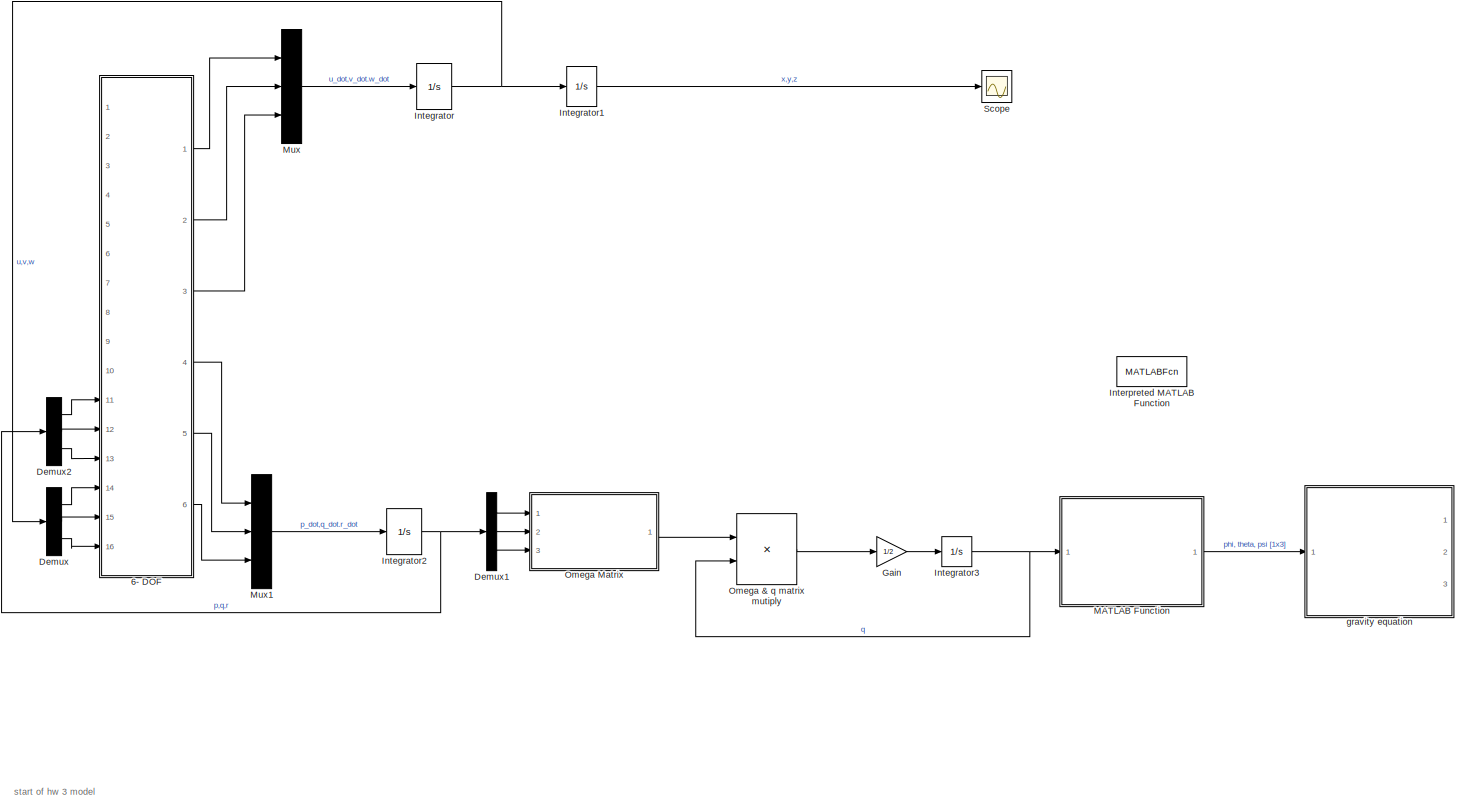
[diagram: root canvas - part 1/1, most of the canvas]
MODEL slx_35ed1de39871
KIND model
CONFIG AbsTol = auto
CONFIG EnableMultiTasking = off
CONFIG FixedStep = auto
CONFIG MaxStep = auto
CONFIG MinStep = auto
CONFIG RelTol = 1e-3
CONFIG SampleTimeConstraint = Unconstrained
CONFIG SolverName = VariableStepAuto
CONFIG StartTime = 0.0
CONFIG StopTime = 10.0
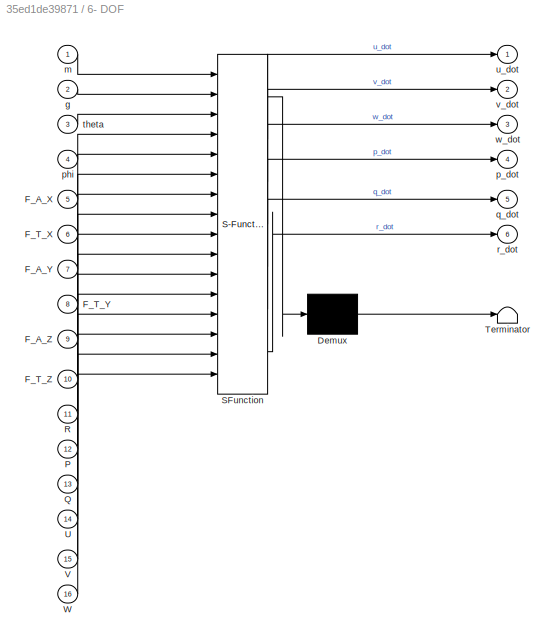
BLOCK [SubSystem] 6- DOF
  ErrorFcn = Stateflow.Translate.translate
  PermitHierarchicalResolution = ExplicitOnly
  Ports = [16, 6]
  RequestExecContextInheritance = off
  SFBlockType = MATLAB Function
  TreatAsAtomicUnit = on
BLOCK [Demux] 6- DOF/ Demux 
  Outputs = 1
  Ports = [1, 1]
BLOCK [S-Function] 6- DOF/ SFunction 
  EnableBusSupport = on
  FunctionName = sf_sfun
  PortCounts = [16 7]
  Ports = [16, 7]
  SFcnIsStateOwnerBlock = off
  SFunctionDeploymentMode = off
  Tag = Stateflow S-Function 2
BLOCK [Terminator] 6- DOF/ Terminator 
BLOCK [Inport] 6- DOF/F_A_X
  Port = 5
BLOCK [Inport] 6- DOF/F_A_Y
  Port = 7
BLOCK [Inport] 6- DOF/F_A_Z
  Port = 9
BLOCK [Inport] 6- DOF/F_T_X
  Port = 6
BLOCK [Inport] 6- DOF/F_T_Y
  Port = 8
BLOCK [Inport] 6- DOF/F_T_Z
  Port = 10
BLOCK [Inport] 6- DOF/P
  Port = 12
BLOCK [Inport] 6- DOF/Q
  Port = 13
BLOCK [Inport] 6- DOF/R
  Port = 11
BLOCK [Inport] 6- DOF/U
  Port = 14
BLOCK [Inport] 6- DOF/V
  Port = 15
BLOCK [Inport] 6- DOF/W
  Port = 16
BLOCK [Inport] 6- DOF/g
  Port = 2
BLOCK [Inport] 6- DOF/m
BLOCK [Outport] 6- DOF/p_dot
  Port = 4
BLOCK [Inport] 6- DOF/phi
  Port = 4
BLOCK [Outport] 6- DOF/q_dot
  Port = 5
BLOCK [Outport] 6- DOF/r_dot
  Port = 6
BLOCK [Inport] 6- DOF/theta
  Port = 3
BLOCK [Outport] 6- DOF/u_dot
BLOCK [Outport] 6- DOF/v_dot
  Port = 2
BLOCK [Outport] 6- DOF/w_dot
  Port = 3
BLOCK [Demux] Demux
  Outputs = 3
  Ports = [1, 3]
BLOCK [Demux] Demux1
  Outputs = 3
  Ports = [1, 3]
BLOCK [Demux] Demux2
  Outputs = 3
  Ports = [1, 3]
BLOCK [Gain] Gain
  Gain = 1/2
BLOCK [Integrator] Integrator
  InitialCondition = 1
  Ports = [1, 1]
BLOCK [Integrator] Integrator1
  InitialCondition = 1
  Ports = [1, 1]
BLOCK [Integrator] Integrator2
  InitialCondition = 1
  Ports = [1, 1]
BLOCK [Integrator] Integrator3
  InitialCondition = q0
  Ports = [1, 1]
BLOCK [MATLABFcn] Interpreted MATLAB Function
  Commented = on
  Ports = [1, 1]
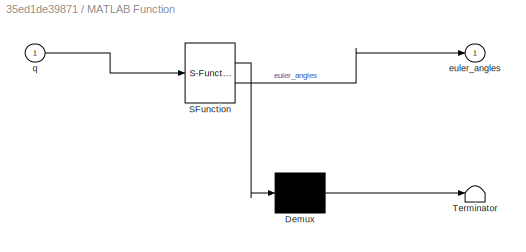
BLOCK [SubSystem] MATLAB Function
  ErrorFcn = Stateflow.Translate.translate
  PermitHierarchicalResolution = ExplicitOnly
  Ports = [1, 1]
  RequestExecContextInheritance = off
  SFBlockType = MATLAB Function
  TreatAsAtomicUnit = on
BLOCK [Demux] MATLAB Function/ Demux 
  Outputs = 1
  Ports = [1, 1]
BLOCK [S-Function] MATLAB Function/ SFunction 
  EnableBusSupport = on
  FunctionName = sf_sfun
  PortCounts = [1 2]
  Ports = [1, 2]
  SFcnIsStateOwnerBlock = off
  SFunctionDeploymentMode = off
  Tag = Stateflow S-Function 3
BLOCK [Terminator] MATLAB Function/ Terminator 
BLOCK [Outport] MATLAB Function/euler_angles
BLOCK [Inport] MATLAB Function/q
BLOCK [Mux] Mux
  DisplayOption = bar
  Inputs = 3
  Ports = [3, 1]
BLOCK [Mux] Mux1
  DisplayOption = bar
  Inputs = 3
  Ports = [3, 1]
BLOCK [Product] Omega & q matrix mutiply
  Multiplication = Matrix(*)
  Ports = [2, 1]
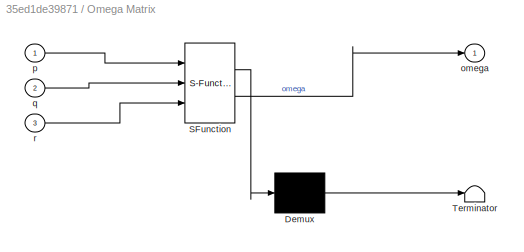
BLOCK [SubSystem] Omega Matrix
  ErrorFcn = Stateflow.Translate.translate
  PermitHierarchicalResolution = ExplicitOnly
  Ports = [3, 1]
  RequestExecContextInheritance = off
  SFBlockType = MATLAB Function
  TreatAsAtomicUnit = on
BLOCK [Demux] Omega Matrix/ Demux 
  Outputs = 1
  Ports = [1, 1]
BLOCK [S-Function] Omega Matrix/ SFunction 
  EnableBusSupport = on
  FunctionName = sf_sfun
  PortCounts = [3 2]
  Ports = [3, 2]
  SFcnIsStateOwnerBlock = off
  SFunctionDeploymentMode = off
  Tag = Stateflow S-Function 1
BLOCK [Terminator] Omega Matrix/ Terminator 
BLOCK [Outport] Omega Matrix/omega
BLOCK [Inport] Omega Matrix/p
BLOCK [Inport] Omega Matrix/q
  Port = 2
BLOCK [Inport] Omega Matrix/r
  Port = 3
BLOCK [Scope] Scope
  Floating = off
  NumInputPorts = 1
  Ports = [1]
  ScopeSpecificationString = Simulink.scopes.TimeScopeBlockCfg('CurrentConfiguration', extmgr.ConfigurationSet(extmgr.Configuration('Core','General UI',true),extmgr.Configuration('Core','Source UI',true),extmgr.Configuration('Sources','WiredSimulink',true),extmgr.Configuration('Visuals','Time Domain',true),extmgr.Configuration('Tools','Plot Navigation',true),extmgr.Configuration('Tools','Measurements',true)),'Version','2021a'...<+1ch>
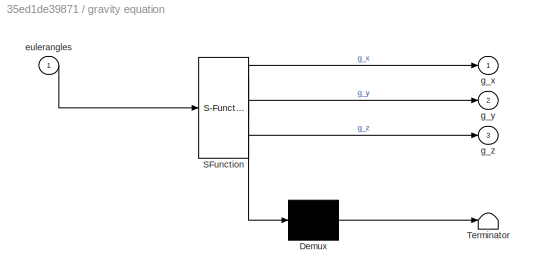
BLOCK [SubSystem] gravity equation
  ErrorFcn = Stateflow.Translate.translate
  PermitHierarchicalResolution = ExplicitOnly
  Ports = [1, 3]
  RequestExecContextInheritance = off
  SFBlockType = MATLAB Function
  TreatAsAtomicUnit = on
BLOCK [Demux] gravity equation/ Demux 
  Outputs = 1
  Ports = [1, 1]
BLOCK [S-Function] gravity equation/ SFunction 
  EnableBusSupport = on
  FunctionName = sf_sfun
  PortCounts = [1 4]
  Ports = [1, 4]
  SFcnIsStateOwnerBlock = off
  SFunctionDeploymentMode = off
  Tag = Stateflow S-Function 4
BLOCK [Terminator] gravity equation/ Terminator 
BLOCK [Inport] gravity equation/eulerangles
BLOCK [Outport] gravity equation/g_x
BLOCK [Outport] gravity equation/g_y
  Port = 2
BLOCK [Outport] gravity equation/g_z
  Port = 3
ANNOTATION (root): start of hw 3 model
LINE 6- DOF:1 -> Mux:1
LINE 6- DOF:2 -> Mux:2
LINE 6- DOF:3 -> Mux:3
LINE 6- DOF:4 -> Mux1:1
LINE 6- DOF:5 -> Mux1:2
LINE 6- DOF:6 -> Mux1:3
LINE Demux1:1 -> Omega Matrix:1
LINE Demux1:2 -> Omega Matrix:2
LINE Demux1:3 -> Omega Matrix:3
LINE Demux2:1 -> 6- DOF:11
LINE Demux2:2 -> 6- DOF:12
LINE Demux2:3 -> 6- DOF:13
LINE Demux:1 -> 6- DOF:14
LINE Demux:2 -> 6- DOF:15
LINE Demux:3 -> 6- DOF:16
LINE Gain:1 -> Integrator3:1
LINE Integrator1:1 -> Scope:1
NET Integrator2:1 -> Demux1:1, Demux2:1
NET Integrator3:1 -> MATLAB Function:1, Omega & q matrix mutiply:2
NET Integrator:1 -> Demux:1, Integrator1:1
LINE MATLAB Function:1 -> gravity equation:1
LINE Mux1:1 -> Integrator2:1
LINE Mux:1 -> Integrator:1
LINE Omega & q matrix mutiply:1 -> Gain:1
LINE Omega Matrix:1 -> Omega & q matrix mutiply:1
note: NET lines group one-source signal fan-out (src -> all destinations, sorted); 1:1 wires keep LINE
CHART Omega Matrix states=1 transitions=1
  STATE_LABEL 'eML_blk_kernel()'
  STATE_LABEL 'SCRIPT:\nfunction omega = fcn(p,q,r)\n\n\nwx = p;\nwy = q;\nwz = r;\nomega = [0 -wx -wy -wz;\n    wx 0 wz -wy;\n    wy -wz 0 wx;\n    wz wy -wx 0];\n'
CHART 6- DOF states=1 transitions=1
  STATE_LABEL 'eML_blk_kernel()'
  STATE_LABEL 'SCRIPT:\n\n\n\nfunction [u_dot,v_dot,w_dot,p_dot,q_dot,r_dot] = fcn(m,g,theta,phi,F_A_X,F_T_X,F_A_Y,F_T_Y,F_A_Z,F_T_Z,R,P,Q,U,V,W)\n\n% CLMEs\nu_dot = (1/m)*(-m*g*sin(theta)+F_A_X+F_T_X)-(Q*W)+(R*V);\nv_dot = (1/m)*(-m*g*sin(theta)+F_A_Y+F_T_Y)-(U*R)+(P*W);\nw_dot = (1/m)*(-m*g*sin(theta)+F_A_Z+F_T_Z)-(P*V)+(Q*U);\n\n%CAMEs\n% [We are doing CAMEs. So KEs,GEs, and FPEs]\np_dot = (1/I_XX)*((r_dot*I_XZ)+(P*Q*I_XZ...<+167ch>'
CHART MATLAB Function states=1 transitions=1
  STATE_LABEL 'eML_blk_kernel()'
  STATE_LABEL "SCRIPT:\nfunction euler_angles = WrapperQuat2Angle(q)\n\n[psi,theta,phi] = quat2angle(q');\n\neuler_angles = [phi;theta;psi];\nend"
CHART gravity equation states=1 transitions=1
  STATE_LABEL 'eML_blk_kernel()'
  STATE_LABEL 'SCRIPT:\nfunction [g_x,g_y,g_z] = fcn(eulerangles)\n\ng_x = -g*sin(eulerangles(2));\ng_y = g*cos(eulerangles(2))*sin(eulerangles(1));\ng_z = g*cos(eulerangles(2))*cos(eulerangles(1));'
CHART  states=0 transitions=0
CHART  states=0 transitions=0
CHART  states=0 transitions=0
CHART  states=0 transitions=0
